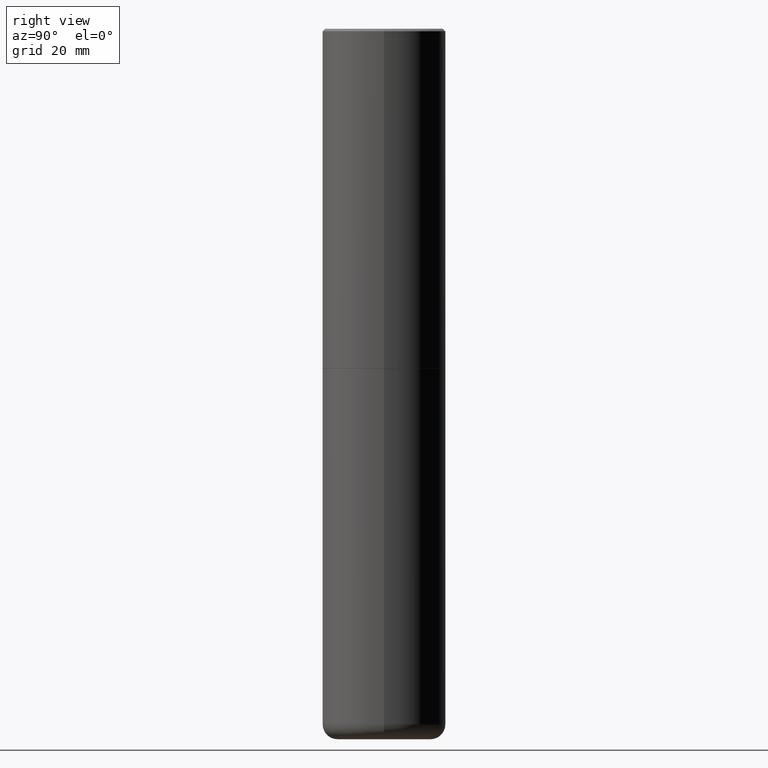
[diagram: clean part render]
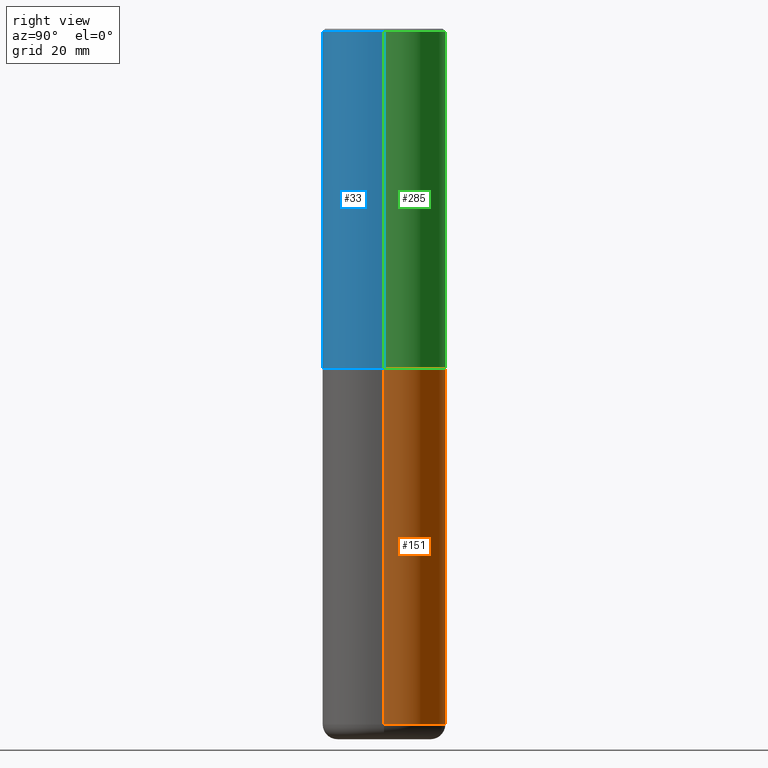
[diagram: same view with three faces highlighted in distinct colors, each labeled with its STEP entity id]
A machine part, right view with three faces highlighted in distinct colors.
Their STEP definitions:

[orange] entity #151 — the highlighted cylindrical surface (partial cylindrical patch) has radius 12.7 mm, axis along (-0, 0, 1).
#14 = ORIENTED_EDGE ( 'NONE', *, *, #243, .F. ) ;
#15 = CARTESIAN_POINT ( 'NONE',  ( 0.5000000000000000000, -1.309305502066178164E-14, -2.749999999999999556 ) ) ;
#16 = AXIS2_PLACEMENT_3D ( 'NONE', #389, #229, #190 ) ;
#31 = CARTESIAN_POINT ( 'NONE',  ( 0.5000000000000000000, -3.491481338843133355E-15, 2.438088387897967896E-29 ) ) ;
#40 = VERTEX_POINT ( 'NONE', #15 ) ;
#52 = CIRCLE ( 'NONE', #16, 0.4999999999999999445 ) ;
#61 = LINE ( 'NONE', #384, #153 ) ;
#64 = DIRECTION ( 'NONE',  ( 1.000000000000000000, -6.982962677686266711E-15, 0.000000000000000000 ) ) ;
#75 = VERTEX_POINT ( 'NONE', #245 ) ;
#90 = FACE_OUTER_BOUND ( 'NONE', #273, .T. ) ;
#95 = CIRCLE ( 'NONE', #325, 0.5000000000000000000 ) ;
#110 = ORIENTED_EDGE ( 'NONE', *, *, #354, .F. ) ;
#118 = DIRECTION ( 'NONE',  ( -2.445468806185136597E-29, 3.491481338843145583E-15, 1.000000000000000000 ) ) ;
#126 = CARTESIAN_POINT ( 'NONE',  ( 6.725039217009123399E-29, -9.601573681818648281E-15, -2.749999999999999556 ) ) ;
#128 = LINE ( 'NONE', #31, #349 ) ;
#145 = EDGE_CURVE ( 'NONE', #244, #403, #61, .T. ) ;
#151 = ADVANCED_FACE ( 'NONE', ( #90 ), #262, .T. ) ;
#153 = VECTOR ( 'NONE', #230, 39.37007874015748143 ) ;
#160 = CARTESIAN_POINT ( 'NONE',  ( -0.4999999999999998335, -1.610432625888640549E-14, -5.629999999999999893 ) ) ;
#190 = DIRECTION ( 'NONE',  ( 1.000000000000000000, -6.982962677686263555E-15, 0.000000000000000000 ) ) ;
#229 = DIRECTION ( 'NONE',  ( -2.445468806185136597E-29, 3.491481338843145583E-15, 1.000000000000000000 ) ) ;
#230 = DIRECTION ( 'NONE',  ( -2.445468806185136877E-29, 3.491481338843145188E-15, 1.000000000000000000 ) ) ;
#240 = AXIS2_PLACEMENT_3D ( 'NONE', #316, #118, #351 ) ;
#243 = EDGE_CURVE ( 'NONE', #75, #40, #128, .T. ) ;
#244 = VERTEX_POINT ( 'NONE', #160 ) ;
#245 = CARTESIAN_POINT ( 'NONE',  ( 0.4999999999999998335, -2.314852127653003978E-14, -5.629999999999999893 ) ) ;
#255 = DIRECTION ( 'NONE',  ( -2.445468806185136877E-29, 3.491481338843145188E-15, 1.000000000000000000 ) ) ;
#257 = CARTESIAN_POINT ( 'NONE',  ( -0.5000000000000000000, -1.107659313095227642E-14, -2.749999999999999556 ) ) ;
#262 = CYLINDRICAL_SURFACE ( 'NONE', #240, 0.5000000000000000000 ) ;
#273 = EDGE_LOOP ( 'NONE', ( #362, #297, #110, #14 ) ) ;
#284 = DIRECTION ( 'NONE',  ( -2.445468806185136597E-29, 3.491481338843145583E-15, 1.000000000000000000 ) ) ;
#297 = ORIENTED_EDGE ( 'NONE', *, *, #145, .T. ) ;
#316 = CARTESIAN_POINT ( 'NONE',  ( 0.000000000000000000, 0.000000000000000000, 0.000000000000000000 ) ) ;
#325 = AXIS2_PLACEMENT_3D ( 'NONE', #126, #284, #64 ) ;
#349 = VECTOR ( 'NONE', #255, 39.37007874015748143 ) ;
#351 = DIRECTION ( 'NONE',  ( 1.000000000000000000, -6.982962677686266711E-15, 4.876176775795935793E-29 ) ) ;
#354 = EDGE_CURVE ( 'NONE', #40, #403, #95, .T. ) ;
#357 = EDGE_CURVE ( 'NONE', #75, #244, #52, .T. ) ;
#362 = ORIENTED_EDGE ( 'NONE', *, *, #357, .T. ) ;
#384 = CARTESIAN_POINT ( 'NONE',  ( -0.5000000000000000000, 3.552713678800500929E-15, -2.459467545127452891E-29 ) ) ;
#389 = CARTESIAN_POINT ( 'NONE',  ( 1.376798937882231913E-28, -1.965703993768690642E-14, -5.629999999999999893 ) ) ;
#403 = VERTEX_POINT ( 'NONE', #257 ) ;

[blue] entity #33 — the highlighted cylindrical surface (partial cylindrical patch) has radius 12.7 mm, axis along (-0, 0, 1).
#23 = VECTOR ( 'NONE', #32, 39.37007874015748143 ) ;
#29 = CARTESIAN_POINT ( 'NONE',  ( 0.5000000000000001110, -3.500078625662629868E-15, -0.02000000000000010797 ) ) ;
#32 = DIRECTION ( 'NONE',  ( -2.445468806185136877E-29, 3.491481338843145188E-15, 1.000000000000000000 ) ) ;
#33 = ADVANCED_FACE ( 'NONE', ( #380 ), #303, .T. ) ;
#35 = DIRECTION ( 'NONE',  ( -2.445468806185136597E-29, 3.491481338843145583E-15, 1.000000000000000000 ) ) ;
#44 = ORIENTED_EDGE ( 'NONE', *, *, #201, .F. ) ;
#53 = DIRECTION ( 'NONE',  ( -2.445468806185136597E-29, 3.491481338843145583E-15, 1.000000000000000000 ) ) ;
#80 = AXIS2_PLACEMENT_3D ( 'NONE', #84, #53, #345 ) ;
#84 = CARTESIAN_POINT ( 'NONE',  ( 0.000000000000000000, 0.000000000000000000, 0.000000000000000000 ) ) ;
#121 = CARTESIAN_POINT ( 'NONE',  ( 0.5000000000000003331, -1.308956353932294179E-14, -2.748999999999999666 ) ) ;
#127 = CARTESIAN_POINT ( 'NONE',  ( -0.5000000000000003331, -1.281242234827830793E-15, -2.748999999999999666 ) ) ;
#130 = LINE ( 'NONE', #265, #206 ) ;
#135 = DIRECTION ( 'NONE',  ( -2.445468806185136877E-29, 3.491481338843145188E-15, 1.000000000000000000 ) ) ;
#143 = ORIENTED_EDGE ( 'NONE', *, *, #299, .T. ) ;
#179 = CIRCLE ( 'NONE', #358, 0.5000000000000003331 ) ;
#181 = EDGE_CURVE ( 'NONE', #220, #376, #179, .T. ) ;
#184 = ORIENTED_EDGE ( 'NONE', *, *, #375, .F. ) ;
#189 = AXIS2_PLACEMENT_3D ( 'NONE', #314, #321, #232 ) ;
#201 = EDGE_CURVE ( 'NONE', #220, #308, #415, .T. ) ;
#206 = VECTOR ( 'NONE', #135, 39.37007874015748143 ) ;
#216 = ORIENTED_EDGE ( 'NONE', *, *, #181, .T. ) ;
#220 = VERTEX_POINT ( 'NONE', #127 ) ;
#224 = CARTESIAN_POINT ( 'NONE',  ( -0.5000000000000002220, 3.552713678800502507E-15, -2.459467545127454012E-29 ) ) ;
#226 = DIRECTION ( 'NONE',  ( 1.000000000000000000, -6.982962677686265922E-15, 0.000000000000000000 ) ) ;
#232 = DIRECTION ( 'NONE',  ( 1.000000000000000000, -6.982962677686265922E-15, 0.000000000000000000 ) ) ;
#265 = CARTESIAN_POINT ( 'NONE',  ( 0.5000000000000002220, -3.491481338843134933E-15, 2.438088387897969017E-29 ) ) ;
#269 = EDGE_LOOP ( 'NONE', ( #44, #216, #143, #184 ) ) ;
#271 = VERTEX_POINT ( 'NONE', #29 ) ;
#299 = EDGE_CURVE ( 'NONE', #376, #271, #130, .T. ) ;
#303 = CYLINDRICAL_SURFACE ( 'NONE', #80, 0.5000000000000002220 ) ;
#308 = VERTEX_POINT ( 'NONE', #326 ) ;
#314 = CARTESIAN_POINT ( 'NONE',  ( 4.890937612370299433E-31, -6.982962677686328587E-17, -0.02000000000000010797 ) ) ;
#321 = DIRECTION ( 'NONE',  ( -2.445468806185136597E-29, 3.491481338843145583E-15, 1.000000000000000000 ) ) ;
#326 = CARTESIAN_POINT ( 'NONE',  ( -0.5000000000000001110, 3.421651712066270452E-15, -0.02000000000000010797 ) ) ;
#333 = CIRCLE ( 'NONE', #189, 0.5000000000000001110 ) ;
#345 = DIRECTION ( 'NONE',  ( 1.000000000000000000, -6.982962677686266711E-15, 4.876176775795935793E-29 ) ) ;
#353 = CARTESIAN_POINT ( 'NONE',  ( 6.722593748202938917E-29, -9.598082200479805274E-15, -2.748999999999999666 ) ) ;
#358 = AXIS2_PLACEMENT_3D ( 'NONE', #353, #35, #226 ) ;
#375 = EDGE_CURVE ( 'NONE', #308, #271, #333, .T. ) ;
#376 = VERTEX_POINT ( 'NONE', #121 ) ;
#380 = FACE_OUTER_BOUND ( 'NONE', #269, .T. ) ;
#415 = LINE ( 'NONE', #224, #23 ) ;

[green] entity #285 — the highlighted cylindrical surface (partial cylindrical patch) has radius 12.7 mm, axis along (-0, 0, 1).
#17 = ORIENTED_EDGE ( 'NONE', *, *, #213, .F. ) ;
#23 = VECTOR ( 'NONE', #32, 39.37007874015748143 ) ;
#29 = CARTESIAN_POINT ( 'NONE',  ( 0.5000000000000001110, -3.500078625662629868E-15, -0.02000000000000010797 ) ) ;
#32 = DIRECTION ( 'NONE',  ( -2.445468806185136877E-29, 3.491481338843145188E-15, 1.000000000000000000 ) ) ;
#34 = AXIS2_PLACEMENT_3D ( 'NONE', #295, #396, #70 ) ;
#50 = ORIENTED_EDGE ( 'NONE', *, *, #365, .T. ) ;
#60 = DIRECTION ( 'NONE',  ( 1.000000000000000000, -6.982962677686265922E-15, 0.000000000000000000 ) ) ;
#70 = DIRECTION ( 'NONE',  ( 1.000000000000000000, -6.982962677686266711E-15, 4.876176775795935793E-29 ) ) ;
#121 = CARTESIAN_POINT ( 'NONE',  ( 0.5000000000000003331, -1.308956353932294179E-14, -2.748999999999999666 ) ) ;
#125 = CYLINDRICAL_SURFACE ( 'NONE', #34, 0.5000000000000002220 ) ;
#127 = CARTESIAN_POINT ( 'NONE',  ( -0.5000000000000003331, -1.281242234827830793E-15, -2.748999999999999666 ) ) ;
#130 = LINE ( 'NONE', #265, #206 ) ;
#135 = DIRECTION ( 'NONE',  ( -2.445468806185136877E-29, 3.491481338843145188E-15, 1.000000000000000000 ) ) ;
#141 = ORIENTED_EDGE ( 'NONE', *, *, #299, .F. ) ;
#158 = DIRECTION ( 'NONE',  ( -2.445468806185136597E-29, 3.491481338843145583E-15, 1.000000000000000000 ) ) ;
#169 = AXIS2_PLACEMENT_3D ( 'NONE', #195, #291, #60 ) ;
#195 = CARTESIAN_POINT ( 'NONE',  ( 6.722593748202938917E-29, -9.598082200479805274E-15, -2.748999999999999666 ) ) ;
#197 = AXIS2_PLACEMENT_3D ( 'NONE', #388, #158, #289 ) ;
#201 = EDGE_CURVE ( 'NONE', #220, #308, #415, .T. ) ;
#206 = VECTOR ( 'NONE', #135, 39.37007874015748143 ) ;
#213 = EDGE_CURVE ( 'NONE', #271, #308, #387, .T. ) ;
#215 = CIRCLE ( 'NONE', #169, 0.5000000000000003331 ) ;
#220 = VERTEX_POINT ( 'NONE', #127 ) ;
#224 = CARTESIAN_POINT ( 'NONE',  ( -0.5000000000000002220, 3.552713678800502507E-15, -2.459467545127454012E-29 ) ) ;
#265 = CARTESIAN_POINT ( 'NONE',  ( 0.5000000000000002220, -3.491481338843134933E-15, 2.438088387897969017E-29 ) ) ;
#271 = VERTEX_POINT ( 'NONE', #29 ) ;
#274 = EDGE_LOOP ( 'NONE', ( #50, #408, #17, #141 ) ) ;
#285 = ADVANCED_FACE ( 'NONE', ( #286 ), #125, .T. ) ;
#286 = FACE_OUTER_BOUND ( 'NONE', #274, .T. ) ;
#289 = DIRECTION ( 'NONE',  ( 1.000000000000000000, -6.982962677686265922E-15, 0.000000000000000000 ) ) ;
#291 = DIRECTION ( 'NONE',  ( -2.445468806185136597E-29, 3.491481338843145583E-15, 1.000000000000000000 ) ) ;
#295 = CARTESIAN_POINT ( 'NONE',  ( 0.000000000000000000, 0.000000000000000000, 0.000000000000000000 ) ) ;
#299 = EDGE_CURVE ( 'NONE', #376, #271, #130, .T. ) ;
#308 = VERTEX_POINT ( 'NONE', #326 ) ;
#326 = CARTESIAN_POINT ( 'NONE',  ( -0.5000000000000001110, 3.421651712066270452E-15, -0.02000000000000010797 ) ) ;
#365 = EDGE_CURVE ( 'NONE', #376, #220, #215, .T. ) ;
#376 = VERTEX_POINT ( 'NONE', #121 ) ;
#387 = CIRCLE ( 'NONE', #197, 0.5000000000000001110 ) ;
#388 = CARTESIAN_POINT ( 'NONE',  ( 4.890937612370299433E-31, -6.982962677686328587E-17, -0.02000000000000010797 ) ) ;
#396 = DIRECTION ( 'NONE',  ( -2.445468806185136597E-29, 3.491481338843145583E-15, 1.000000000000000000 ) ) ;
#408 = ORIENTED_EDGE ( 'NONE', *, *, #201, .T. ) ;
#415 = LINE ( 'NONE', #224, #23 ) ;